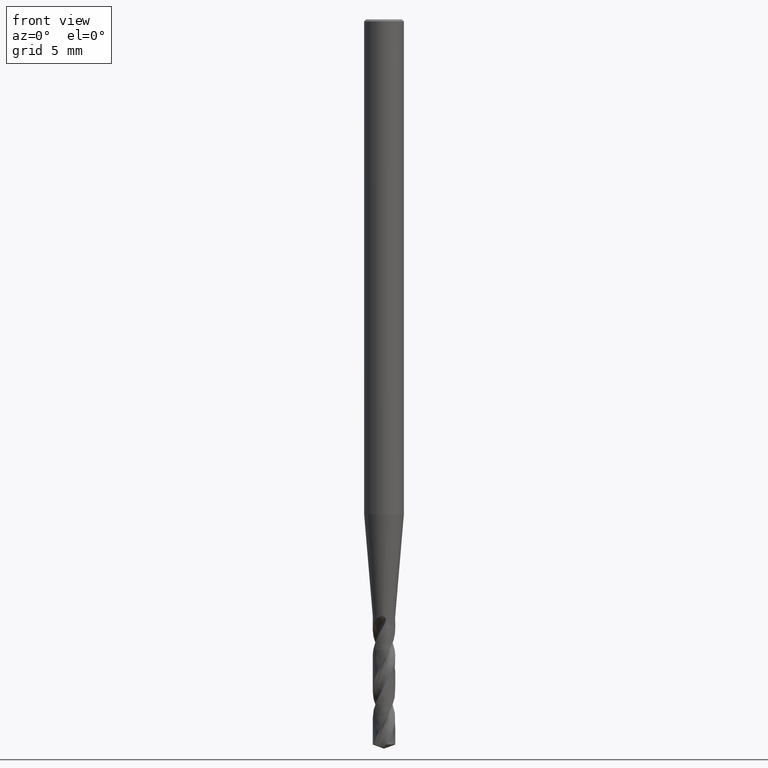
[diagram: clean part render]
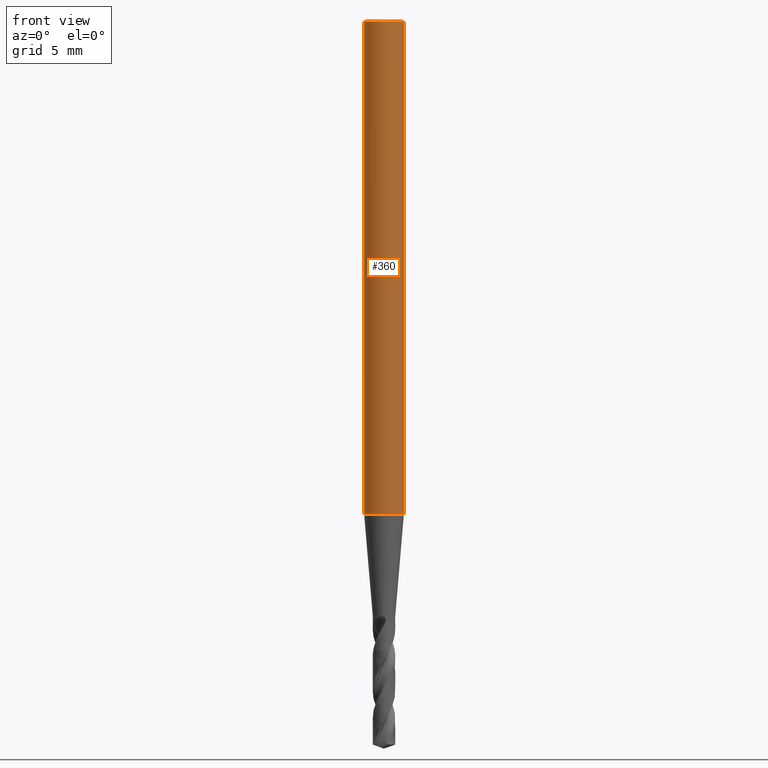
[diagram: same view with one face highlighted and labeled with its STEP entity id]
A machine part, front view. The second image highlights one B-rep face of the part: STEP entity #360.
In plain terms, the highlighted face is a freeform B-spline surface patch.
Its self-contained STEP definition (entity closure, byte-faithful):
#249 = VERTEX_POINT('', #250);
#250 = CARTESIAN_POINT('', (-1.5, 2.3764883460854E-15, -37.311));
#256 = EDGE_CURVE('', #249, #249, #257, .T.);
#257 = CIRCLE('', #258, 1.5);
#258 = AXIS2_PLACEMENT_3D('', #259, #260, #261);
#259 = CARTESIAN_POINT('', (1.39893843127241E-31, 2.28463983614934E-15, -37.311));
#260 = DIRECTION('', (3.74939945665464E-33, 6.12323399573677E-17, -1.));
#261 = DIRECTION('', (-1., 6.12323399573677E-17, 0.));
#309 = VERTEX_POINT('', #310);
#310 = CARTESIAN_POINT('', (-1.5, 1.01033360929656E-16, -0.149999999999999));
#326 = EDGE_CURVE('', #309, #309, #327, .T.);
#327 = CIRCLE('', #328, 1.5);
#328 = AXIS2_PLACEMENT_3D('', #329, #330, #331);
#329 = CARTESIAN_POINT('', (5.62409918498176E-34, 9.18485099360482E-18, -0.149999999999999));
#330 = DIRECTION('', (3.74939945665464E-33, 6.12323399573677E-17, -1.));
#331 = DIRECTION('', (-1., 6.12323399573677E-17, 0.));
#360 = ADVANCED_FACE('', (#361), #372, .T.);
#361 = FACE_OUTER_BOUND('', #362, .T.);
#362 = EDGE_LOOP('', (#363, #369, #370, #371));
#363 = ORIENTED_EDGE('', *, *, #364, .T.);
#364 = EDGE_CURVE('', #249, #309, #365, .T.);
#365 = LINE('', #366, #367);
#366 = CARTESIAN_POINT('', (-1.5, 2.3764883460854E-15, -37.311));
#367 = VECTOR('', #368, 37.161);
#368 = DIRECTION('', (0., -2.27545498515574E-15, 37.161));
#369 = ORIENTED_EDGE('', *, *, #326, .T.);
#370 = ORIENTED_EDGE('', *, *, #364, .F.);
#371 = ORIENTED_EDGE('', *, *, #256, .F.);
#372 = (
   BOUNDED_SURFACE ()
   B_SPLINE_SURFACE (1, 2, ((#373, #374, #375, #376, #377, #378, #379, #380, #381), (#382, #383, #384, #385, #386, #387, #388, #389, #390)), .UNSPECIFIED., .F., .T., .U.)
   B_SPLINE_SURFACE_WITH_KNOTS ((2, 2), (3, 2, 2, 2, 3), (0., 1.), (0., 2.35619449019235, 4.71238898038469, 7.06858347057704, 9.42477796076938), .UNSPECIFIED.)
   GEOMETRIC_REPRESENTATION_ITEM ()
   RATIONAL_B_SPLINE_SURFACE (((1., 0.707106781186548, 1., 0.707106781186548, 1., 0.707106781186548, 1., 0.707106781186548, 1.), (1., 0.707106781186548, 1., 0.707106781186548, 1., 0.707106781186548, 1., 0.707106781186548, 1.)))
   REPRESENTATION_ITEM ('')
   SURFACE ()
);
#373 = CARTESIAN_POINT('', (-1.5, 2.3764883460854E-15, -37.311));
#374 = CARTESIAN_POINT('', (-1.5, 1.5, -37.311));
#375 = CARTESIAN_POINT('', (1.35585468084861E-31, 1.5, -37.311));
#376 = CARTESIAN_POINT('', (1.5, 1.5, -37.311));
#377 = CARTESIAN_POINT('', (1.5, 2.3764883460854E-15, -37.311));
#378 = CARTESIAN_POINT('', (1.5, -1.5, -37.311));
#379 = CARTESIAN_POINT('', (1.83697019872103E-16, -1.5, -37.311));
#380 = CARTESIAN_POINT('', (-1.5, -1.5, -37.311));
#381 = CARTESIAN_POINT('', (-1.5, 2.3764883460854E-15, -37.311));
#382 = CARTESIAN_POINT('', (-1.5, 1.01033360929656E-16, -0.149999999999999));
#383 = CARTESIAN_POINT('', (-1.5, 1.5, -0.149999999999999));
#384 = CARTESIAN_POINT('', (0., 1.5, -0.149999999999999));
#385 = CARTESIAN_POINT('', (1.5, 1.5, -0.149999999999999));
#386 = CARTESIAN_POINT('', (1.5, 1.01033360929657E-16, -0.149999999999999));
#387 = CARTESIAN_POINT('', (1.5, -1.5, -0.149999999999999));
#388 = CARTESIAN_POINT('', (1.83697019872103E-16, -1.5, -0.149999999999999));
#389 = CARTESIAN_POINT('', (-1.5, -1.5, -0.149999999999999));
#390 = CARTESIAN_POINT('', (-1.5, 1.01033360929656E-16, -0.149999999999999));